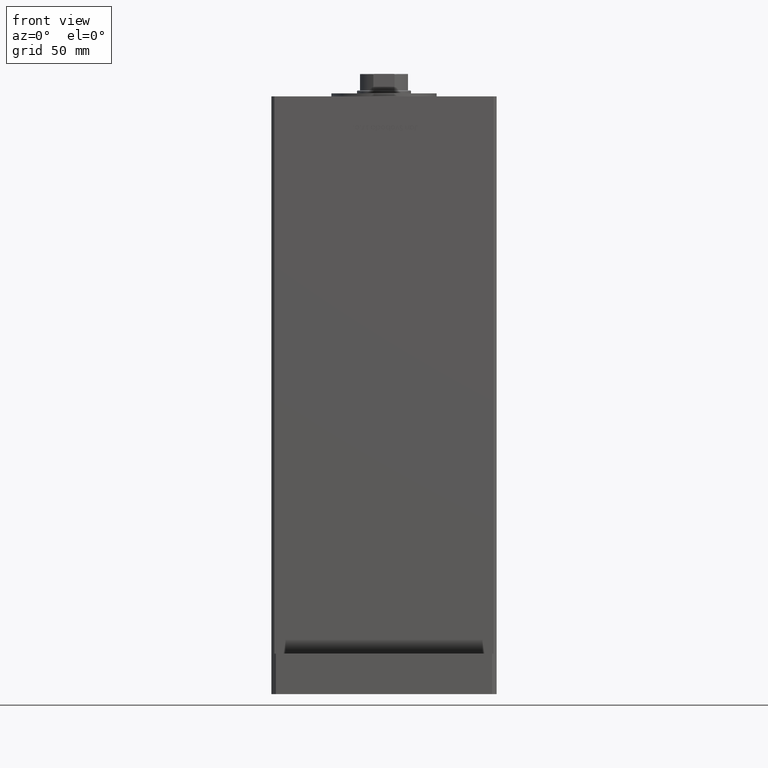
[diagram: clean part render]
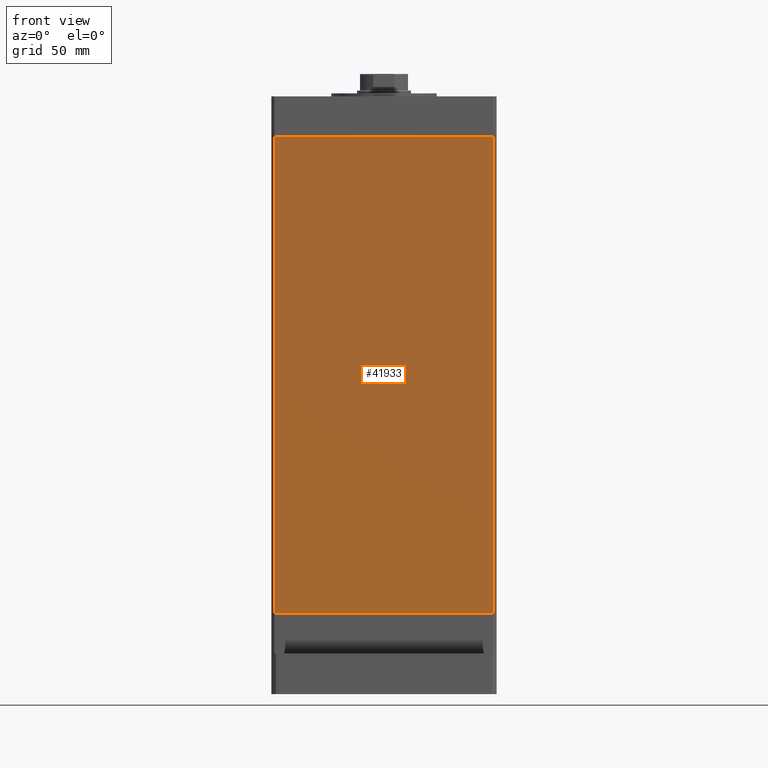
[diagram: same view with one face highlighted and labeled with its STEP entity id]
A machine part, front view. The second image highlights one B-rep face of the part: STEP entity #41933.
In plain terms, the highlighted planar face has unit normal (0, 1, 0).
Its self-contained STEP definition (entity closure, byte-faithful):
#1334 = LINE ( 'NONE', #29100, #19349 ) ;
#3232 = EDGE_CURVE ( 'NONE', #8372, #20739, #20367, .T. ) ;
#3688 = DIRECTION ( 'NONE',  ( 1.000000000000000000, 0.000000000000000000, 0.000000000000000000 ) ) ;
#8372 = VERTEX_POINT ( 'NONE', #15467 ) ;
#8690 = DIRECTION ( 'NONE',  ( -0.000000000000000000, -0.000000000000000000, -1.000000000000000000 ) ) ;
#9797 = DIRECTION ( 'NONE',  ( 0.000000000000000000, -0.000000000000000000, 1.000000000000000000 ) ) ;
#10063 = CARTESIAN_POINT ( 'NONE',  ( -72.99999999999998579, -62.50000000000000000, 317.0000000000000000 ) ) ;
#10999 = EDGE_CURVE ( 'NONE', #18570, #20532, #36145, .T. ) ;
#11996 = ORIENTED_EDGE ( 'NONE', *, *, #28171, .T. ) ;
#13336 = PLANE ( 'NONE',  #33823 ) ;
#14092 = EDGE_LOOP ( 'NONE', ( #11996, #45708, #47429, #22660 ) ) ;
#14527 = VECTOR ( 'NONE', #3688, 1000.000000000000000 ) ;
#15022 = CARTESIAN_POINT ( 'NONE',  ( 72.99999999999998579, -62.50000000000000000, 317.0000000000000000 ) ) ;
#15467 = CARTESIAN_POINT ( 'NONE',  ( -72.99999999999998579, -62.50000000000000000, 317.0000000000000000 ) ) ;
#17680 = FACE_OUTER_BOUND ( 'NONE', #14092, .T. ) ;
#18570 = VERTEX_POINT ( 'NONE', #25951 ) ;
#19349 = VECTOR ( 'NONE', #53530, 1000.000000000000000 ) ;
#19426 = CARTESIAN_POINT ( 'NONE',  ( -72.99999999999998579, -62.50000000000000000, 0.000000000000000000 ) ) ;
#20367 = LINE ( 'NONE', #46106, #49552 ) ;
#20532 = VERTEX_POINT ( 'NONE', #43104 ) ;
#20739 = VERTEX_POINT ( 'NONE', #33850 ) ;
#22660 = ORIENTED_EDGE ( 'NONE', *, *, #3232, .T. ) ;
#25951 = CARTESIAN_POINT ( 'NONE',  ( 72.99999999999998579, -62.50000000000000000, 317.0000000000000000 ) ) ;
#26616 = DIRECTION ( 'NONE',  ( 0.000000000000000000, 1.000000000000000000, 0.000000000000000000 ) ) ;
#28171 = EDGE_CURVE ( 'NONE', #20739, #20532, #40820, .T. ) ;
#29100 = CARTESIAN_POINT ( 'NONE',  ( -72.99999999999998579, -62.50000000000000000, 317.0000000000000000 ) ) ;
#29751 = VECTOR ( 'NONE', #43748, 1000.000000000000000 ) ;
#33823 = AXIS2_PLACEMENT_3D ( 'NONE', #10063, #26616, #9797 ) ;
#33850 = CARTESIAN_POINT ( 'NONE',  ( -72.99999999999998579, -62.50000000000000000, 0.000000000000000000 ) ) ;
#36145 = LINE ( 'NONE', #15022, #29751 ) ;
#40820 = LINE ( 'NONE', #19426, #14527 ) ;
#41933 = ADVANCED_FACE ( 'NONE', ( #17680 ), #13336, .F. ) ;
#43104 = CARTESIAN_POINT ( 'NONE',  ( 72.99999999999998579, -62.50000000000000000, 0.000000000000000000 ) ) ;
#43748 = DIRECTION ( 'NONE',  ( -0.000000000000000000, -0.000000000000000000, -1.000000000000000000 ) ) ;
#45708 = ORIENTED_EDGE ( 'NONE', *, *, #10999, .F. ) ;
#46106 = CARTESIAN_POINT ( 'NONE',  ( -72.99999999999998579, -62.50000000000000000, 317.0000000000000000 ) ) ;
#47429 = ORIENTED_EDGE ( 'NONE', *, *, #52668, .F. ) ;
#49552 = VECTOR ( 'NONE', #8690, 1000.000000000000000 ) ;
#52668 = EDGE_CURVE ( 'NONE', #8372, #18570, #1334, .T. ) ;
#53530 = DIRECTION ( 'NONE',  ( 1.000000000000000000, 0.000000000000000000, 0.000000000000000000 ) ) ;